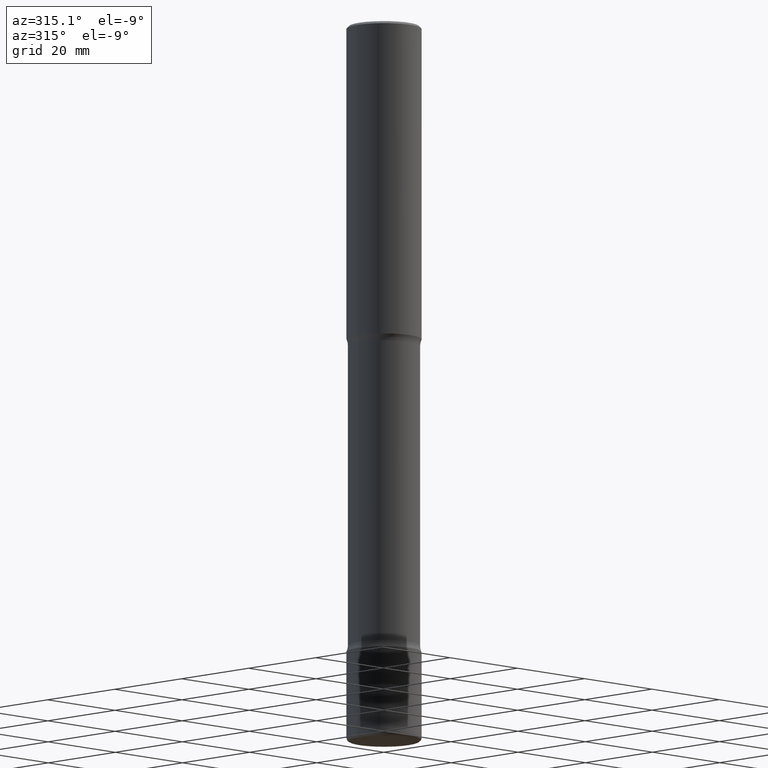
[diagram: clean part render]
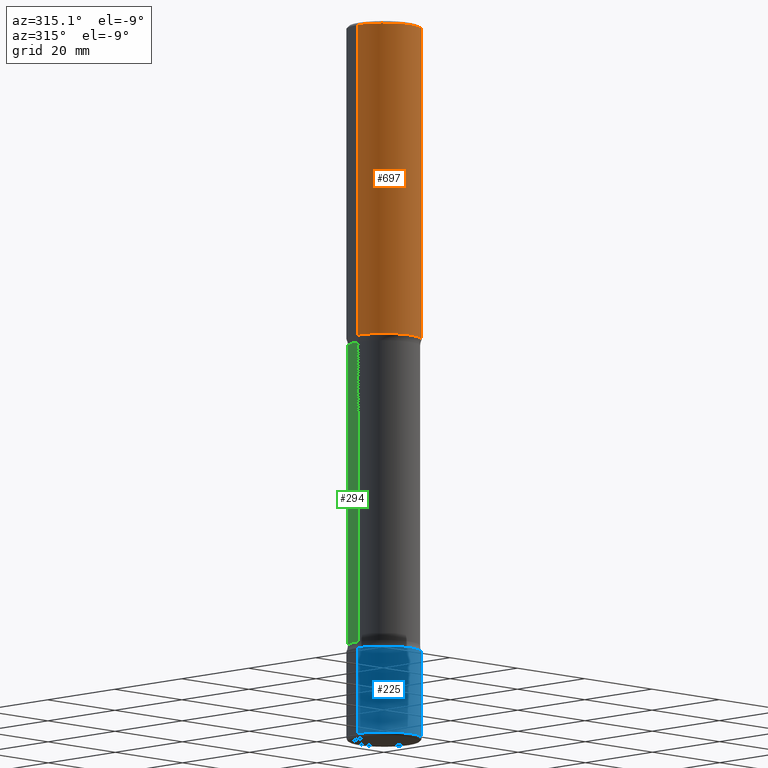
[diagram: same view with three faces highlighted in distinct colors, each labeled with its STEP entity id]
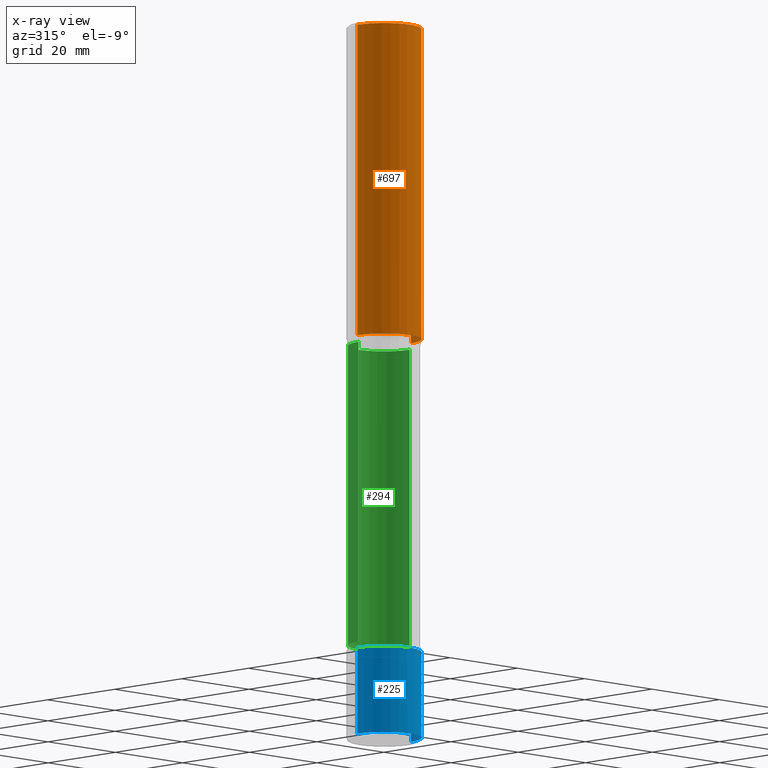
[diagram: x-ray of the same camera — body ghosted, the three highlighted faces saturated]
A machine part, auxiliary view with three faces highlighted in distinct colors.
The next image is the same camera in x-ray (body ghosted, the three faces saturated) — at least one of them is partly hidden behind the body in this view.
Their STEP definitions:

[orange] entity #697 — the highlighted cylindrical surface (partial cylindrical patch) has radius 7.9375 mm, axis along (-0, 0, 1).
#17 = CIRCLE ( 'NONE', #200, 0.3125000000000000000 ) ;
#30 = AXIS2_PLACEMENT_3D ( 'NONE', #280, #534, #276 ) ;
#42 = CARTESIAN_POINT ( 'NONE',  ( 0.000000000000000000, 0.000000000000000000, 0.000000000000000000 ) ) ;
#58 = LINE ( 'NONE', #678, #117 ) ;
#82 = EDGE_CURVE ( 'NONE', #638, #508, #17, .T. ) ;
#117 = VECTOR ( 'NONE', #371, 39.37007874015748143 ) ;
#145 = FACE_OUTER_BOUND ( 'NONE', #419, .T. ) ;
#181 = CARTESIAN_POINT ( 'NONE',  ( 0.3124999999999998890, -2.182175836776957558E-15, 1.523805242436229235E-29 ) ) ;
#185 = CIRCLE ( 'NONE', #30, 0.3124999999999996669 ) ;
#196 = CARTESIAN_POINT ( 'NONE',  ( -0.3125000000000000000, -2.397038021369746085E-15, -2.625000000000000444 ) ) ;
#197 = DIRECTION ( 'NONE',  ( -2.445468806185136597E-29, 3.491481338843145583E-15, 1.000000000000000000 ) ) ;
#200 = AXIS2_PLACEMENT_3D ( 'NONE', #312, #197, #321 ) ;
#245 = EDGE_CURVE ( 'NONE', #430, #666, #185, .T. ) ;
#276 = DIRECTION ( 'NONE',  ( 1.000000000000000000, -6.982962677686266711E-15, 0.000000000000000000 ) ) ;
#279 = DIRECTION ( 'NONE',  ( 1.000000000000000000, -6.982962677686266711E-15, 4.876176775795935232E-29 ) ) ;
#280 = CARTESIAN_POINT ( 'NONE',  ( 4.890937612370289799E-31, -6.982962677686315028E-17, -0.02000000000000006981 ) ) ;
#312 = CARTESIAN_POINT ( 'NONE',  ( 6.419355616235984688E-29, -9.165138514463258190E-15, -2.625000000000000444 ) ) ;
#321 = DIRECTION ( 'NONE',  ( 1.000000000000000000, -6.982962677686269077E-15, 0.000000000000000000 ) ) ;
#326 = CARTESIAN_POINT ( 'NONE',  ( 0.3124999999999996669, -2.213735251080464545E-15, -0.02000000000000006981 ) ) ;
#371 = DIRECTION ( 'NONE',  ( -2.445468806185136877E-29, 3.491481338843145188E-15, 1.000000000000000000 ) ) ;
#419 = EDGE_LOOP ( 'NONE', ( #727, #459, #566, #532 ) ) ;
#430 = VERTEX_POINT ( 'NONE', #479 ) ;
#431 = EDGE_CURVE ( 'NONE', #638, #430, #58, .T. ) ;
#447 = EDGE_CURVE ( 'NONE', #508, #666, #488, .T. ) ;
#459 = ORIENTED_EDGE ( 'NONE', *, *, #82, .T. ) ;
#479 = CARTESIAN_POINT ( 'NONE',  ( -0.3124999999999996669, 2.112346210000092682E-15, -0.02000000000000006981 ) ) ;
#488 = LINE ( 'NONE', #181, #616 ) ;
#508 = VERTEX_POINT ( 'NONE', #518 ) ;
#518 = CARTESIAN_POINT ( 'NONE',  ( 0.3125000000000000000, -1.134731435124021811E-14, -2.625000000000000444 ) ) ;
#532 = ORIENTED_EDGE ( 'NONE', *, *, #245, .F. ) ;
#534 = DIRECTION ( 'NONE',  ( -2.445468806185136597E-29, 3.491481338843145583E-15, 1.000000000000000000 ) ) ;
#566 = ORIENTED_EDGE ( 'NONE', *, *, #447, .T. ) ;
#616 = VECTOR ( 'NONE', #620, 39.37007874015748143 ) ;
#620 = DIRECTION ( 'NONE',  ( -2.445468806185136877E-29, 3.491481338843145188E-15, 1.000000000000000000 ) ) ;
#638 = VERTEX_POINT ( 'NONE', #196 ) ;
#666 = VERTEX_POINT ( 'NONE', #326 ) ;
#678 = CARTESIAN_POINT ( 'NONE',  ( -0.3124999999999998890, 2.220446049250312292E-15, -1.537167215704657391E-29 ) ) ;
#683 = AXIS2_PLACEMENT_3D ( 'NONE', #42, #711, #279 ) ;
#697 = ADVANCED_FACE ( 'NONE', ( #145 ), #792, .T. ) ;
#711 = DIRECTION ( 'NONE',  ( -2.445468806185136597E-29, 3.491481338843145583E-15, 1.000000000000000000 ) ) ;
#727 = ORIENTED_EDGE ( 'NONE', *, *, #431, .F. ) ;
#792 = CYLINDRICAL_SURFACE ( 'NONE', #683, 0.3124999999999998890 ) ;

[blue] entity #225 — the highlighted cylindrical surface (partial cylindrical patch) has radius 7.9375 mm, axis along (-0, 0, 1).
#12 = DIRECTION ( 'NONE',  ( -2.445468806185136877E-29, 3.491481338843145188E-15, 1.000000000000000000 ) ) ;
#14 = EDGE_CURVE ( 'NONE', #407, #409, #516, .T. ) ;
#28 = EDGE_CURVE ( 'NONE', #50, #407, #171, .T. ) ;
#50 = VERTEX_POINT ( 'NONE', #193 ) ;
#77 = CYLINDRICAL_SURFACE ( 'NONE', #254, 0.3125000000000000000 ) ;
#119 = DIRECTION ( 'NONE',  ( -2.445468806185136877E-29, 3.491481338843145188E-15, 1.000000000000000000 ) ) ;
#127 = DIRECTION ( 'NONE',  ( -2.445468806185136597E-29, 3.491481338843145583E-15, 1.000000000000000000 ) ) ;
#133 = CIRCLE ( 'NONE', #290, 0.3125000000000000000 ) ;
#171 = CIRCLE ( 'NONE', #590, 0.3125000000000000000 ) ;
#180 = EDGE_CURVE ( 'NONE', #50, #570, #759, .T. ) ;
#189 = ORIENTED_EDGE ( 'NONE', *, *, #14, .T. ) ;
#193 = CARTESIAN_POINT ( 'NONE',  ( -0.3125000000000001665, -1.862369754364326626E-14, -5.969999999999999751 ) ) ;
#210 = DIRECTION ( 'NONE',  ( -2.445468806185136597E-29, 3.491481338843145583E-15, 1.000000000000000000 ) ) ;
#225 = ADVANCED_FACE ( 'NONE', ( #763 ), #77, .T. ) ;
#254 = AXIS2_PLACEMENT_3D ( 'NONE', #686, #127, #372 ) ;
#290 = AXIS2_PLACEMENT_3D ( 'NONE', #378, #210, #636 ) ;
#309 = DIRECTION ( 'NONE',  ( -2.445468806185136597E-29, 3.491481338843145583E-15, 1.000000000000000000 ) ) ;
#372 = DIRECTION ( 'NONE',  ( 1.000000000000000000, -6.982962677686266711E-15, 4.876176775795936353E-29 ) ) ;
#378 = CARTESIAN_POINT ( 'NONE',  ( 1.283871123247196489E-28, -1.833027702892651007E-14, -5.249999999999999112 ) ) ;
#387 = ORIENTED_EDGE ( 'NONE', *, *, #642, .F. ) ;
#395 = ORIENTED_EDGE ( 'NONE', *, *, #180, .F. ) ;
#407 = VERTEX_POINT ( 'NONE', #549 ) ;
#409 = VERTEX_POINT ( 'NONE', #805 ) ;
#428 = CARTESIAN_POINT ( 'NONE',  ( 0.3125000000000000000, -2.182175836776958347E-15, 1.523805242436230075E-29 ) ) ;
#457 = CARTESIAN_POINT ( 'NONE',  ( -0.3125000000000000000, -1.736676426165973004E-14, -5.249999999999999112 ) ) ;
#463 = EDGE_LOOP ( 'NONE', ( #395, #655, #189, #387 ) ) ;
#467 = VECTOR ( 'NONE', #12, 39.37007874015748143 ) ;
#516 = LINE ( 'NONE', #428, #523 ) ;
#523 = VECTOR ( 'NONE', #119, 39.37007874015748143 ) ;
#549 = CARTESIAN_POINT ( 'NONE',  ( 0.3125000000000001665, -2.302631942967053611E-14, -5.969999999999999751 ) ) ;
#570 = VERTEX_POINT ( 'NONE', #457 ) ;
#590 = AXIS2_PLACEMENT_3D ( 'NONE', #621, #309, #781 ) ;
#621 = CARTESIAN_POINT ( 'NONE',  ( 1.459944877292526494E-28, -2.084414359289357934E-14, -5.969999999999999751 ) ) ;
#636 = DIRECTION ( 'NONE',  ( 1.000000000000000000, -6.982962677686262766E-15, 0.000000000000000000 ) ) ;
#642 = EDGE_CURVE ( 'NONE', #570, #409, #133, .T. ) ;
#655 = ORIENTED_EDGE ( 'NONE', *, *, #28, .T. ) ;
#686 = CARTESIAN_POINT ( 'NONE',  ( 0.000000000000000000, 0.000000000000000000, 0.000000000000000000 ) ) ;
#749 = CARTESIAN_POINT ( 'NONE',  ( -0.3125000000000000000, 2.220446049250313081E-15, -1.537167215704658232E-29 ) ) ;
#759 = LINE ( 'NONE', #749, #467 ) ;
#763 = FACE_OUTER_BOUND ( 'NONE', #463, .T. ) ;
#781 = DIRECTION ( 'NONE',  ( 1.000000000000000000, -6.982962677686262766E-15, 0.000000000000000000 ) ) ;
#805 = CARTESIAN_POINT ( 'NONE',  ( 0.3125000000000000000, -2.051245286570346684E-14, -5.249999999999999112 ) ) ;

[green] entity #294 — the highlighted cylindrical surface (edge-blend (fillet) strip) has radius 7.62 mm, axis along (-0, 0, 1).
#25 = LINE ( 'NONE', #93, #89 ) ;
#44 = DIRECTION ( 'NONE',  ( 1.000000000000000000, -6.982962677686262766E-15, 0.000000000000000000 ) ) ;
#86 = VECTOR ( 'NONE', #755, 39.37007874015748143 ) ;
#89 = VECTOR ( 'NONE', #582, 39.37007874015748143 ) ;
#93 = CARTESIAN_POINT ( 'NONE',  ( 0.3000000000000000999, -1.126002731776913978E-14, -2.625000000000000444 ) ) ;
#107 = AXIS2_PLACEMENT_3D ( 'NONE', #652, #207, #397 ) ;
#115 = CIRCLE ( 'NONE', #535, 0.3000000000000002109 ) ;
#116 = CARTESIAN_POINT ( 'NONE',  ( 6.552600008682760916E-29, -9.355376193454202673E-15, -2.679486236794259568 ) ) ;
#148 = AXIS2_PLACEMENT_3D ( 'NONE', #116, #361, #613 ) ;
#192 = CARTESIAN_POINT ( 'NONE',  ( 0.3000000000000002109, -2.023492815324145191E-14, -5.195513763205741320 ) ) ;
#207 = DIRECTION ( 'NONE',  ( -2.445468806185136597E-29, 3.491481338843145583E-15, 1.000000000000000000 ) ) ;
#227 = EDGE_CURVE ( 'NONE', #246, #617, #625, .T. ) ;
#232 = EDGE_CURVE ( 'NONE', #444, #246, #115, .T. ) ;
#246 = VERTEX_POINT ( 'NONE', #355 ) ;
#282 = CIRCLE ( 'NONE', #148, 0.2999999999999999334 ) ;
#294 = ADVANCED_FACE ( 'NONE', ( #768 ), #647, .T. ) ;
#342 = VERTEX_POINT ( 'NONE', #520 ) ;
#355 = CARTESIAN_POINT ( 'NONE',  ( -0.3000000000000002109, -1.605912106116573479E-14, -5.195513763205741320 ) ) ;
#361 = DIRECTION ( 'NONE',  ( -2.445468806185136597E-29, 3.491481338843145583E-15, 1.000000000000000000 ) ) ;
#381 = CARTESIAN_POINT ( 'NONE',  ( -0.3000000000000000999, -7.033510307182958105E-15, -2.625000000000000444 ) ) ;
#397 = DIRECTION ( 'NONE',  ( 1.000000000000000000, -6.982962677686265922E-15, 0.000000000000000000 ) ) ;
#444 = VERTEX_POINT ( 'NONE', #192 ) ;
#456 = DIRECTION ( 'NONE',  ( -2.445468806185136597E-29, 3.491481338843145583E-15, 1.000000000000000000 ) ) ;
#485 = EDGE_CURVE ( 'NONE', #342, #617, #282, .T. ) ;
#504 = CARTESIAN_POINT ( 'NONE',  ( -0.2999999999999999889, -7.084220225693425032E-15, -2.679486236794259568 ) ) ;
#520 = CARTESIAN_POINT ( 'NONE',  ( 0.2999999999999999334, -1.145026499676008269E-14, -2.679486236794259568 ) ) ;
#535 = AXIS2_PLACEMENT_3D ( 'NONE', #639, #456, #44 ) ;
#550 = ORIENTED_EDGE ( 'NONE', *, *, #227, .T. ) ;
#565 = EDGE_CURVE ( 'NONE', #444, #342, #25, .T. ) ;
#582 = DIRECTION ( 'NONE',  ( -2.445468806185136877E-29, 3.491481338843145188E-15, 1.000000000000000000 ) ) ;
#613 = DIRECTION ( 'NONE',  ( 1.000000000000000000, -6.982962677686269866E-15, 0.000000000000000000 ) ) ;
#617 = VERTEX_POINT ( 'NONE', #504 ) ;
#625 = LINE ( 'NONE', #381, #86 ) ;
#639 = CARTESIAN_POINT ( 'NONE',  ( 1.270546684002518978E-28, -1.814003934993557190E-14, -5.195513763205741320 ) ) ;
#647 = CYLINDRICAL_SURFACE ( 'NONE', #107, 0.3000000000000000999 ) ;
#648 = ORIENTED_EDGE ( 'NONE', *, *, #565, .F. ) ;
#652 = CARTESIAN_POINT ( 'NONE',  ( 6.419355616235984688E-29, -9.165138514463258190E-15, -2.625000000000000444 ) ) ;
#677 = ORIENTED_EDGE ( 'NONE', *, *, #485, .F. ) ;
#698 = ORIENTED_EDGE ( 'NONE', *, *, #232, .T. ) ;
#755 = DIRECTION ( 'NONE',  ( -2.445468806185136877E-29, 3.491481338843145188E-15, 1.000000000000000000 ) ) ;
#757 = EDGE_LOOP ( 'NONE', ( #698, #550, #677, #648 ) ) ;
#768 = FACE_OUTER_BOUND ( 'NONE', #757, .T. ) ;